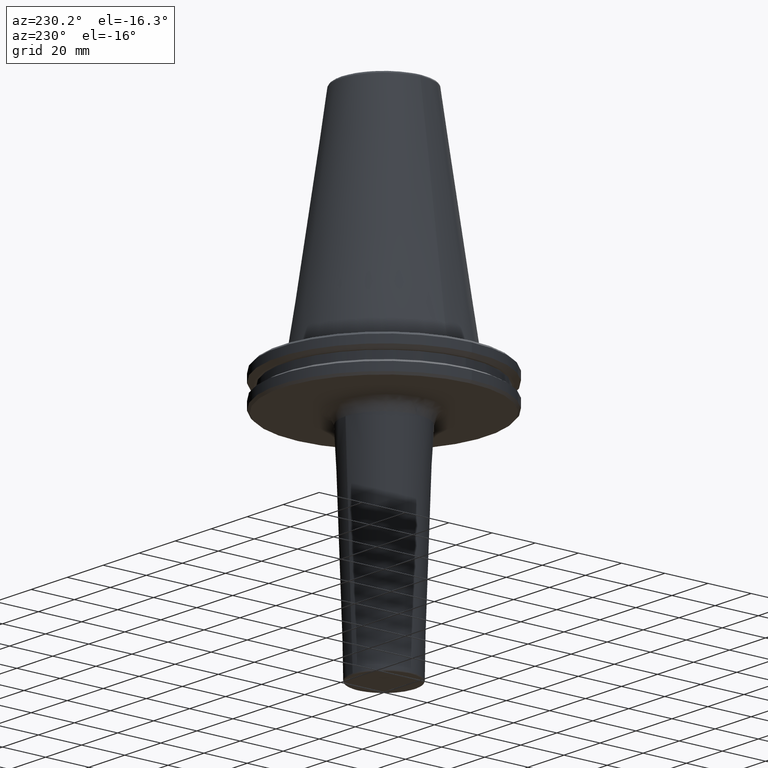
[diagram: clean part render]
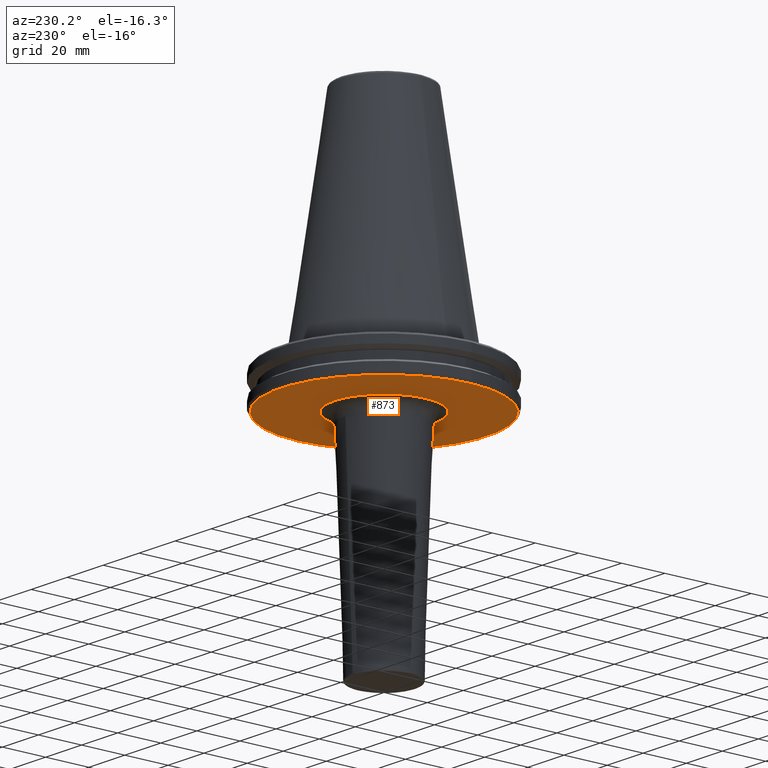
[diagram: same view with one face highlighted and labeled with its STEP entity id]
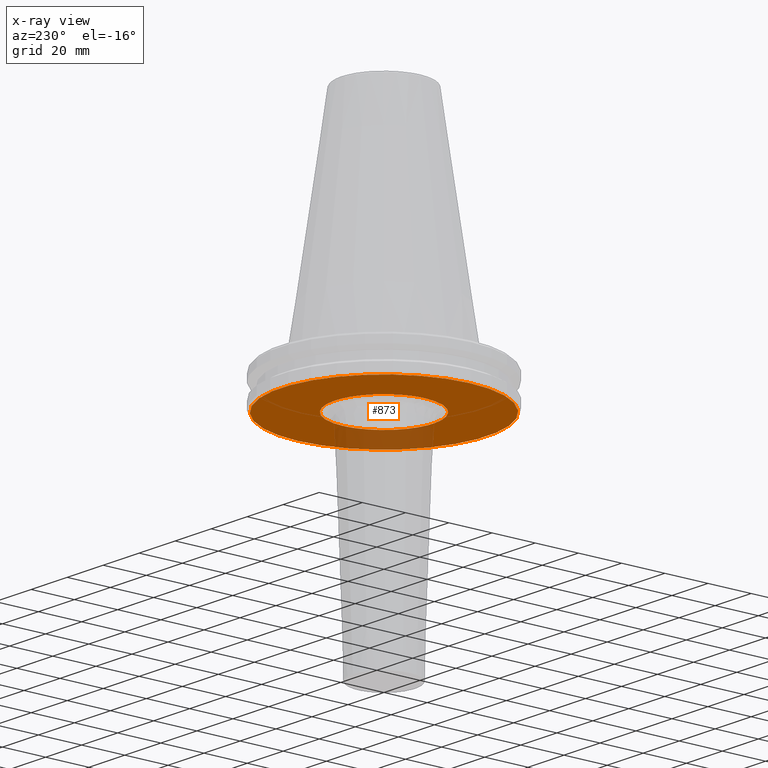
[diagram: x-ray of the same camera — body ghosted, the highlighted face saturated]
A machine part, auxiliary view. The second image highlights one B-rep face of the part: STEP entity #873.
The next image is the same camera in x-ray: the body ghosted, the highlighted face saturated — about 16% of this face is hidden behind the body in this view.
In plain terms, the highlighted planar face has unit normal (0, 0, -1).
Its self-contained STEP definition (entity closure, byte-faithful):
#45 = CARTESIAN_POINT ( 'NONE',  ( 22.31228933546329400, 4.881676873664744700, -19.09999999999999400 ) ) ;
#63 = ORIENTED_EDGE ( 'NONE', *, *, #1444, .F. ) ;
#69 = EDGE_LOOP ( 'NONE', ( #96, #304 ) ) ;
#75 = CARTESIAN_POINT ( 'NONE',  ( 22.78042330298929500, 1.740819265574696400, -19.10000000000000500 ) ) ;
#78 = CARTESIAN_POINT ( 'NONE',  ( 22.64147837888152600, 2.949852188542820800, -19.10000000000000500 ) ) ;
#84 = CARTESIAN_POINT ( 'NONE',  ( 22.82806156268339100, 2.795631252347894000E-015, -19.10000000000000500 ) ) ;
#90 = CARTESIAN_POINT ( 'NONE',  ( 21.29273228508893800, 8.230564738626219100, -19.10000000000000100 ) ) ;
#93 = CARTESIAN_POINT ( 'NONE',  ( 22.82806156268339500, -1.396454163596773500, -19.10000000000000100 ) ) ;
#96 = ORIENTED_EDGE ( 'NONE', *, *, #116, .T. ) ;
#102 = CARTESIAN_POINT ( 'NONE',  ( 22.70102620349914000, -2.781075417796220300, -19.10000000000000500 ) ) ;
#104 = CARTESIAN_POINT ( 'NONE',  ( 22.44298563015613000, -4.175313580485759100, -19.10000000000000900 ) ) ;
#108 = CARTESIAN_POINT ( 'NONE',  ( 22.43849916178885800, -4.199363345581996800, -19.10000000000000100 ) ) ;
#110 = CARTESIAN_POINT ( 'NONE',  ( 22.42994198119624700, -4.244833663054379300, -19.10000000000000100 ) ) ;
#113 = CARTESIAN_POINT ( 'NONE',  ( 22.41700535305649600, -4.313009873751574300, -19.10000000000000500 ) ) ;
#116 = EDGE_CURVE ( 'NONE', #1308, #838, #758, .T. ) ;
#117 = CARTESIAN_POINT ( 'NONE',  ( 22.38611388664119100, -4.471882840132003000, -19.10000000000000500 ) ) ;
#121 = CARTESIAN_POINT ( 'NONE',  ( 22.32150695078713600, -4.788809338574126600, -19.10000000000000500 ) ) ;
#128 = FACE_OUTER_BOUND ( 'NONE', #467, .T. ) ;
#133 = CARTESIAN_POINT ( 'NONE',  ( 22.18099706698523500, -5.419384598183378400, -19.10000000000000900 ) ) ;
#139 = CARTESIAN_POINT ( 'NONE',  ( 21.85479325100612200, -6.667424168301998600, -19.10000000000000100 ) ) ;
#141 = CARTESIAN_POINT ( 'NONE',  ( 22.45116380230774300, 4.131119602877402200, -19.10000000000000500 ) ) ;
#142 = CARTESIAN_POINT ( 'NONE',  ( 21.49773161152357300, -7.714696458518095500, -19.09999999999999800 ) ) ;
#145 = CARTESIAN_POINT ( 'NONE',  ( 21.20823538725298700, -8.445900705292645600, -19.10000000000000100 ) ) ;
#146 = CARTESIAN_POINT ( 'NONE',  ( 21.24300699259264400, 8.358069299538433600, -19.10000000000000900 ) ) ;
#149 = CARTESIAN_POINT ( 'NONE',  ( 21.18962481807872000, -8.492496306890615200, -19.10000000000000500 ) ) ;
#158 = CARTESIAN_POINT ( 'NONE',  ( 21.15358072283777000, -8.581893291728668800, -19.10000000000000500 ) ) ;
#162 = CARTESIAN_POINT ( 'NONE',  ( 21.09911024357263200, -8.715778137709683900, -19.10000000000000500 ) ) ;
#164 = AXIS2_PLACEMENT_3D ( 'NONE', #907, #892, #867 ) ;
#167 = CARTESIAN_POINT ( 'NONE',  ( -22.82806156268339100, 0.0000000000000000000, -19.10000000000000500 ) ) ;
#170 = CARTESIAN_POINT ( 'NONE',  ( 20.96918210379468700, -9.026701692732897800, -19.10000000000000900 ) ) ;
#173 = CARTESIAN_POINT ( 'NONE',  ( 20.69800440493491000, -9.642651127049378000, -19.10000000000000900 ) ) ;
#181 = CARTESIAN_POINT ( 'NONE',  ( 20.11036332999988100, -10.85095929276262300, -19.10000000000000500 ) ) ;
#189 = CARTESIAN_POINT ( 'NONE',  ( 19.52903839054331700, -11.84621080122587400, -19.10000000000000900 ) ) ;
#192 = CARTESIAN_POINT ( 'NONE',  ( 19.05422839119474800, -12.57242883007069700, -19.10000000000000100 ) ) ;
#198 = CARTESIAN_POINT ( 'NONE',  ( 18.99866868114749300, -12.65625465060945100, -19.10000000000000900 ) ) ;
#209 = CARTESIAN_POINT ( 'NONE',  ( 18.88887845415888100, -12.81956869425480700, -19.10000000000000500 ) ) ;
#214 = CARTESIAN_POINT ( 'NONE',  ( 18.72271926332887700, -13.06333709073557400, -19.10000000000000100 ) ) ;
#220 = CARTESIAN_POINT ( 'NONE',  ( 18.32469753229601000, -13.62371133294649500, -19.10000000000000500 ) ) ;
#221 = CARTESIAN_POINT ( 'NONE',  ( 17.48738626051219200, -14.71078508572482400, -19.10000000000000500 ) ) ;
#225 = CARTESIAN_POINT ( 'NONE',  ( 16.69894606803787300, -15.58483447671741100, -19.10000000000000500 ) ) ;
#233 = CARTESIAN_POINT ( 'NONE',  ( 15.02773926087644100, -17.25596244351742200, -19.10000000000000500 ) ) ;
#244 = CARTESIAN_POINT ( 'NONE',  ( 13.81052122464795000, -18.24483669963387600, -19.10000000000000500 ) ) ;
#245 = CARTESIAN_POINT ( 'NONE',  ( 12.40931398255988100, -19.16086933017373200, -19.10000000000000100 ) ) ;
#246 = CARTESIAN_POINT ( 'NONE',  ( 12.32999966421798100, -19.21199831384471700, -19.10000000000000500 ) ) ;
#249 = CARTESIAN_POINT ( 'NONE',  ( 12.16742618611643700, -19.31539044640761900, -19.10000000000000500 ) ) ;
#250 = DIRECTION ( 'NONE',  ( 1.000000000000000000, 0.0000000000000000000, 0.0000000000000000000 ) ) ;
#253 = CARTESIAN_POINT ( 'NONE',  ( 11.92273076462143200, -19.46885752175919400, -19.10000000000000500 ) ) ;
#254 = DIRECTION ( 'NONE',  ( -0.0000000000000000000, -0.0000000000000000000, 1.000000000000000000 ) ) ;
#255 = CARTESIAN_POINT ( 'NONE',  ( 11.34592835073423300, -19.81559949979672600, -19.10000000000000500 ) ) ;
#258 = CARTESIAN_POINT ( 'NONE',  ( 10.16893780136440700, -20.46369199807397600, -19.10000000000000500 ) ) ;
#260 = CARTESIAN_POINT ( 'NONE',  ( 9.119998950598146700, -20.94138592608674500, -19.10000000000001200 ) ) ;
#261 = VERTEX_POINT ( 'NONE', #1155 ) ;
#266 = CARTESIAN_POINT ( 'NONE',  ( 0.0000000000000000000, 0.0000000000000000000, -19.09999999999995200 ) ) ;
#268 = CARTESIAN_POINT ( 'NONE',  ( 8.358069299537639600, -21.24300699259279300, -19.10000000000000500 ) ) ;
#274 = CARTESIAN_POINT ( 'NONE',  ( 8.316784260471870000, -21.25920043003061700, -19.10000000000000100 ) ) ;
#288 = CARTESIAN_POINT ( 'NONE',  ( 8.230564738626020100, -21.29273228508843000, -19.10000000000000100 ) ) ;
#293 = CARTESIAN_POINT ( 'NONE',  ( 8.101120364316019000, -21.34262606961830500, -19.10000000000000100 ) ) ;
#296 = CARTESIAN_POINT ( 'NONE',  ( 7.798277850137431200, -21.45621691379019700, -19.10000000000000500 ) ) ;
#304 = ORIENTED_EDGE ( 'NONE', *, *, #1046, .T. ) ;
#305 = CARTESIAN_POINT ( 'NONE',  ( 21.45621691379186300, 7.798277850138053900, -19.10000000000000900 ) ) ;
#307 = CARTESIAN_POINT ( 'NONE',  ( 7.189370258625911200, -21.67208665654265000, -19.10000000000000900 ) ) ;
#314 = CARTESIAN_POINT ( 'NONE',  ( 5.958664822985504400, -22.05857835968216600, -19.10000000000000500 ) ) ;
#316 = CARTESIAN_POINT ( 'NONE',  ( 4.881676873663934700, -22.31228933546113400, -19.10000000000000500 ) ) ;
#318 = CARTESIAN_POINT ( 'NONE',  ( 22.50079664322240400, 3.853331620544945900, -19.10000000000000900 ) ) ;
#327 = CARTESIAN_POINT ( 'NONE',  ( 4.131119602877420000, -22.45116380230781400, -19.10000000000000900 ) ) ;
#336 = CARTESIAN_POINT ( 'NONE',  ( 22.46267983256873200, 4.068028259309591600, -19.10000000000000500 ) ) ;
#337 = CARTESIAN_POINT ( 'NONE',  ( 4.110944779735608500, -22.45486518609846300, -19.10000000000000500 ) ) ;
#338 = CARTESIAN_POINT ( 'NONE',  ( 47.74999999999995700, 0.0000000000000000000, -19.09999999999995200 ) ) ;
#343 = CARTESIAN_POINT ( 'NONE',  ( 4.068017518967534900, -22.46268181983809600, -19.10000000000000500 ) ) ;
#344 = CARTESIAN_POINT ( 'NONE',  ( 4.003618349909968900, -22.47431370321936200, -19.10000000000000900 ) ) ;
#347 = CARTESIAN_POINT ( 'NONE',  ( 3.853295676770752900, -22.50080329384500600, -19.10000000000000500 ) ) ;
#354 = ORIENTED_EDGE ( 'NONE', *, *, #601, .F. ) ;
#355 = CARTESIAN_POINT ( 'NONE',  ( 3.552418549139466600, -22.55117659270698700, -19.10000000000000500 ) ) ;
#358 = CARTESIAN_POINT ( 'NONE',  ( 2.949737168465425400, -22.64149966087384800, -19.10000000000000500 ) ) ;
#359 = CARTESIAN_POINT ( 'NONE',  ( 1.740665905471500400, -22.78045167897905900, -19.10000000000001200 ) ) ;
#363 = CARTESIAN_POINT ( 'NONE',  ( 0.6979616772267052100, -22.82807777753468400, -19.10000000000000500 ) ) ;
#364 = CARTESIAN_POINT ( 'NONE',  ( -1.395923354453416400, -22.82802913298080900, -19.10000000000000500 ) ) ;
#367 = CARTESIAN_POINT ( 'NONE',  ( -2.781250729790679000, -22.70099375739214400, -19.10000000000000900 ) ) ;
#370 = CARTESIAN_POINT ( 'NONE',  ( -4.175310841235845100, -22.44298613712655000, -19.10000000000000500 ) ) ;
#378 = CARTESIAN_POINT ( 'NONE',  ( -4.199363345583506700, -22.43849916178841400, -19.10000000000000100 ) ) ;
#379 = CARTESIAN_POINT ( 'NONE',  ( -4.244833663057371500, -22.42994198119537300, -19.10000000000000500 ) ) ;
#381 = CARTESIAN_POINT ( 'NONE',  ( -4.313009873756742600, -22.41700535305497200, -19.10000000000000500 ) ) ;
#384 = CARTESIAN_POINT ( 'NONE',  ( -4.471882840142008300, -22.38611388663825600, -19.10000000000000500 ) ) ;
#386 = CARTESIAN_POINT ( 'NONE',  ( -4.788809338592795200, -22.32150695078165000, -19.10000000000000500 ) ) ;
#389 = CARTESIAN_POINT ( 'NONE',  ( -5.419384598215393600, -22.18099706697582400, -19.10000000000000900 ) ) ;
#394 = CARTESIAN_POINT ( 'NONE',  ( -6.667424168344671100, -21.85479325099358800, -19.10000000000000500 ) ) ;
#398 = CARTESIAN_POINT ( 'NONE',  ( -7.714696458542475100, -21.49773161151641800, -19.10000000000000100 ) ) ;
#402 = CARTESIAN_POINT ( 'NONE',  ( -8.445900705291125000, -21.20823538725344200, -19.10000000000000500 ) ) ;
#404 = CARTESIAN_POINT ( 'NONE',  ( -8.492496306893579900, -21.18962481807723100, -19.10000000000000100 ) ) ;
#418 = CARTESIAN_POINT ( 'NONE',  ( -8.581893291734463200, -21.15358072283486700, -19.10000000000000900 ) ) ;
#421 = CARTESIAN_POINT ( 'NONE',  ( -8.715778137719571100, -21.09911024356766500, -19.10000000000000500 ) ) ;
#425 = CARTESIAN_POINT ( 'NONE',  ( -9.026701692751343500, -20.96918210378540000, -19.10000000000000500 ) ) ;
#427 = CARTESIAN_POINT ( 'NONE',  ( -9.642651127081007800, -20.69800440491899400, -19.10000000000000500 ) ) ;
#434 = CARTESIAN_POINT ( 'NONE',  ( -10.85095929280480900, -20.11036332997865700, -19.10000000000000900 ) ) ;
#438 = CARTESIAN_POINT ( 'NONE',  ( 21.25920043003087700, 8.316784260471976600, -19.10000000000001200 ) ) ;
#441 = CARTESIAN_POINT ( 'NONE',  ( -11.84621080124998500, -19.52903839053117700, -19.10000000000000500 ) ) ;
#443 = CARTESIAN_POINT ( 'NONE',  ( -12.57242883006769000, -19.05422839119626500, -19.10000000000000500 ) ) ;
#448 = CARTESIAN_POINT ( 'NONE',  ( -12.65625465061204500, -18.99866868114489900, -19.10000000000000500 ) ) ;
#451 = CARTESIAN_POINT ( 'NONE',  ( -12.81956869425974200, -18.88887845415395400, -19.10000000000000500 ) ) ;
#463 = CARTESIAN_POINT ( 'NONE',  ( -13.06333709074376900, -18.72271926332069100, -19.10000000000000100 ) ) ;
#467 = EDGE_LOOP ( 'NONE', ( #354, #63 ) ) ;
#468 = AXIS2_PLACEMENT_3D ( 'NONE', #266, #254, #250 ) ;
#470 = CARTESIAN_POINT ( 'NONE',  ( -13.62371133296052900, -18.32469753228199100, -19.10000000000000100 ) ) ;
#480 = CARTESIAN_POINT ( 'NONE',  ( -14.71078508574354200, -17.48738626049348400, -19.10000000000000100 ) ) ;
#484 = CARTESIAN_POINT ( 'NONE',  ( -15.58483447672810000, -16.69894606802719000, -19.10000000000000100 ) ) ;
#489 = CARTESIAN_POINT ( 'NONE',  ( -17.25596244349603500, -15.02773926089783700, -19.10000000000000100 ) ) ;
#492 = CARTESIAN_POINT ( 'NONE',  ( -18.24483669967177600, -13.81052122461004700, -19.10000000000000500 ) ) ;
#495 = CARTESIAN_POINT ( 'NONE',  ( -19.16086933017136200, -12.40931398256226000, -19.10000000000000900 ) ) ;
#496 = CARTESIAN_POINT ( 'NONE',  ( -22.82806156268339100, 0.0000000000000000000, -19.10000000000000500 ) ) ;
#499 = CARTESIAN_POINT ( 'NONE',  ( -22.82806156268339500, 1.396454163596815700, -19.10000000000001200 ) ) ;
#501 = CARTESIAN_POINT ( 'NONE',  ( -22.64147837888152600, -2.949852188553505600, -19.10000000000000500 ) ) ;
#503 = CARTESIAN_POINT ( 'NONE',  ( -21.24300699259267900, -8.358069299538435400, -19.10000000000000500 ) ) ;
#504 = CARTESIAN_POINT ( 'NONE',  ( -22.70102620349914000, 2.781075417796206900, -19.10000000000000500 ) ) ;
#506 = CARTESIAN_POINT ( 'NONE',  ( -21.67208665654091600, -7.189370258640315600, -19.10000000000000500 ) ) ;
#508 = CARTESIAN_POINT ( 'NONE',  ( 0.0000000000000000000, 1.392610934382537900E-015, -19.10000000000000500 ) ) ;
#514 = CARTESIAN_POINT ( 'NONE',  ( -19.31539044640846800, -12.16742618611061400, -19.10000000000000900 ) ) ;
#524 = CARTESIAN_POINT ( 'NONE',  ( -21.25920043003044700, -8.316784260473225400, -19.10000000000000900 ) ) ;
#526 = CARTESIAN_POINT ( 'NONE',  ( -22.44298563015613000, 4.175313580485763500, -19.10000000000000500 ) ) ;
#530 = CARTESIAN_POINT ( 'NONE',  ( -21.29273228508811400, -8.230564738628661600, -19.10000000000000500 ) ) ;
#531 = CARTESIAN_POINT ( 'NONE',  ( -22.43849916178926300, 4.199363345579803000, -19.10000000000000500 ) ) ;
#534 = CARTESIAN_POINT ( 'NONE',  ( -19.21199831384516400, -12.32999966421492200, -19.10000000000000900 ) ) ;
#537 = CARTESIAN_POINT ( 'NONE',  ( 21.67208665654548100, 7.189370258626969000, -19.10000000000000100 ) ) ;
#539 = CARTESIAN_POINT ( 'NONE',  ( -22.45116380230785300, -4.131119602877078900, -19.10000000000001200 ) ) ;
#541 = CARTESIAN_POINT ( 'NONE',  ( -21.34262606961776100, -8.101120364320523800, -19.10000000000000500 ) ) ;
#543 = CARTESIAN_POINT ( 'NONE',  ( 22.47431026706435400, 4.003636920859968900, -19.10000000000000500 ) ) ;
#547 = CARTESIAN_POINT ( 'NONE',  ( -22.42994198119704700, 4.244833663050044100, -19.10000000000000500 ) ) ;
#558 = CARTESIAN_POINT ( 'NONE',  ( -22.41700535305787800, 4.313009873744076300, -19.10000000000000500 ) ) ;
#565 = CARTESIAN_POINT ( 'NONE',  ( -22.38611388664388000, 4.471882840117487500, -19.10000000000000900 ) ) ;
#569 = CARTESIAN_POINT ( 'NONE',  ( 22.05857835968595300, 5.958664822986913000, -19.10000000000000500 ) ) ;
#572 = CARTESIAN_POINT ( 'NONE',  ( 22.45486418058767700, 4.110950214091951200, -19.10000000000001200 ) ) ;
#585 = CARTESIAN_POINT ( 'NONE',  ( -22.32150695079216300, 4.788809338547028300, -19.10000000000000900 ) ) ;
#594 = CARTESIAN_POINT ( 'NONE',  ( 22.55116417821146200, 3.552485644184615800, -19.10000000000000100 ) ) ;
#601 = EDGE_CURVE ( 'NONE', #1217, #261, #832, .T. ) ;
#602 = CARTESIAN_POINT ( 'NONE',  ( -22.82806156268339100, 0.0000000000000000000, -19.10000000000000500 ) ) ;
#606 = CARTESIAN_POINT ( 'NONE',  ( -22.55116417821145400, -3.552485644190843200, -19.10000000000000100 ) ) ;
#616 = CARTESIAN_POINT ( 'NONE',  ( -22.50079664322239400, -3.853331620548279700, -19.10000000000000900 ) ) ;
#618 = CARTESIAN_POINT ( 'NONE',  ( -22.18099706699383200, 5.419384598136932900, -19.10000000000000500 ) ) ;
#624 = CARTESIAN_POINT ( 'NONE',  ( -21.85479325101759700, 6.667424168240046400, -19.10000000000000900 ) ) ;
#633 = CARTESIAN_POINT ( 'NONE',  ( -21.49773161153012400, 7.714696458482692700, -19.10000000000000100 ) ) ;
#634 = CARTESIAN_POINT ( 'NONE',  ( -21.20823538725256400, 8.445900705294869600, -19.10000000000000500 ) ) ;
#638 = CARTESIAN_POINT ( 'NONE',  ( -22.82806156268338800, -0.6980493115795235500, -19.10000000000000100 ) ) ;
#641 = CARTESIAN_POINT ( 'NONE',  ( -21.18962481808144800, 8.492496306886142300, -19.10000000000000500 ) ) ;
#642 = CARTESIAN_POINT ( 'NONE',  ( -21.15358072284309500, 8.581893291719913100, -19.10000000000000500 ) ) ;
#651 = CARTESIAN_POINT ( 'NONE',  ( -21.09911024358175200, 8.715778137694714500, -19.10000000000000500 ) ) ;
#660 = CARTESIAN_POINT ( 'NONE',  ( -20.96918210381168600, 9.026701692704952200, -19.10000000000000500 ) ) ;
#664 = CARTESIAN_POINT ( 'NONE',  ( -20.69800440496408100, 9.642651127001460800, -19.10000000000000500 ) ) ;
#670 = CARTESIAN_POINT ( 'NONE',  ( -20.11036333003878300, 10.85095929269873900, -19.10000000000000500 ) ) ;
#677 = CARTESIAN_POINT ( 'NONE',  ( -22.46267983256872500, -4.068028259310581900, -19.10000000000000100 ) ) ;
#680 = CARTESIAN_POINT ( 'NONE',  ( -22.47431026706435000, -4.003636920861689300, -19.10000000000000500 ) ) ;
#687 = CARTESIAN_POINT ( 'NONE',  ( -19.52903839056553500, 11.84621080118937700, -19.10000000000000900 ) ) ;
#701 = CARTESIAN_POINT ( 'NONE',  ( -19.05422839119196300, 12.57242883007526000, -19.10000000000000500 ) ) ;
#714 = CARTESIAN_POINT ( 'NONE',  ( -18.99866868114982000, 12.65625465060650300, -19.10000000000000500 ) ) ;
#742 = DIRECTION ( 'NONE',  ( -1.000000000000000000, 0.0000000000000000000, -0.0000000000000000000 ) ) ;
#748 = CARTESIAN_POINT ( 'NONE',  ( -18.88887845416331900, 12.81956869424920100, -19.10000000000000900 ) ) ;
#758 = B_SPLINE_CURVE_WITH_KNOTS ( 'NONE', 3,
 ( #602, #638, #976, #501, #606, #616, #680, #677, #880, #539, #1177, #1070, #506, #1090, #541, #530, #524, #503, #1237, #1014, #906, #922, #514, #534, #495, #492, #489, #484, #480, #470, #463, #451, #448, #443, #441, #434, #427, #425, #421, #418, #404, #402, #398, #394, #389, #386, #384, #381, #379, #378, #370, #367, #364, #363, #359, #358, #355, #347, #344, #343, #337, #327, #316, #314, #307, #296, #293, #288, #274, #268, #260, #258, #255, #253, #249, #246, #245, #244, #233, #225, #221, #220, #214, #209, #198, #192, #189, #181, #173, #170, #162, #158, #149, #145, #142, #139, #133, #121, #117, #113, #110, #108, #104, #102, #93, #84 ),
 .UNSPECIFIED., .F., .F.,
 ( 4, 1, 1, 1, 1, 1, 2, 2, 1, 1, 1, 1, 2, 2, 1, 1, 1, 2, 2, 2, 1, 1, 1, 2, 2, 1, 1, 1, 1, 2, 2, 1, 1, 1, 1, 1, 2, 2, 2, 1, 1, 1, 1, 1, 2, 2, 1, 1, 1, 1, 2, 2, 1, 1, 1, 2, 2, 2, 1, 1, 1, 2, 2, 1, 1, 1, 1, 2, 2, 1, 1, 1, 1, 1, 2, 2, 4 ),
 ( 0.0000000000000000000, 0.03125000000000097800, 0.04687500000000145000, 0.05468750000000169300, 0.05859375000000179000, 0.06054687500000182500, 0.06152343750000186000, 0.06250000000000188700, 0.09375000000000215100, 0.1093750000000023300, 0.1171875000000023900, 0.1210937500000023500, 0.1230468750000023000, 0.1250000000000022500, 0.1562500000000014400, 0.1718750000000010500, 0.1796875000000008300, 0.1835937500000006900, 0.1875000000000005600, 0.2499999999999993300, 0.2812499999999987200, 0.2968749999999983900, 0.3046874999999982800, 0.3085937499999981100, 0.3124999999999979500, 0.3437499999999970600, 0.3593749999999966100, 0.3671874999999963900, 0.3710937499999962800, 0.3730468749999962300, 0.3749999999999961700, 0.4062499999999964500, 0.4218749999999966100, 0.4296874999999966700, 0.4335937499999967800, 0.4355468749999967800, 0.4365234374999967200, 0.4374999999999967200, 0.4999999999999951700, 0.5312499999999944500, 0.5468749999999940000, 0.5546874999999937800, 0.5585937499999937800, 0.5605468749999936700, 0.5615234374999936700, 0.5624999999999937800, 0.5937499999999935600, 0.6093749999999935600, 0.6171874999999935600, 0.6210937499999935600, 0.6230468749999936700, 0.6249999999999936700, 0.6562499999999935600, 0.6718749999999934500, 0.6796874999999935600, 0.6835937499999935600, 0.6874999999999935600, 0.7499999999999936700, 0.7812499999999936700, 0.7968749999999937800, 0.8046874999999937800, 0.8085937499999937800, 0.8124999999999937800, 0.8437499999999940000, 0.8593749999999941200, 0.8671874999999943400, 0.8710937499999943400, 0.8730468749999943400, 0.8749999999999944500, 0.9062499999999945600, 0.9218749999999945600, 0.9296874999999945600, 0.9335937499999945600, 0.9355468749999946700, 0.9365234374999946700, 0.9374999999999946700, 1.000000000000000000 ),
 .UNSPECIFIED. ) ;
#770 = CARTESIAN_POINT ( 'NONE',  ( -18.72271926333625600, 13.06333709072626100, -19.10000000000000500 ) ) ;
#771 = CARTESIAN_POINT ( 'NONE',  ( -18.32469753230866900, 13.62371133293052100, -19.10000000000000900 ) ) ;
#772 = CARTESIAN_POINT ( 'NONE',  ( -17.48738626052905700, 14.71078508570352600, -19.10000000000000500 ) ) ;
#783 = CARTESIAN_POINT ( 'NONE',  ( -16.69894606804752300, 15.58483447670522500, -19.10000000000000500 ) ) ;
#790 = CARTESIAN_POINT ( 'NONE',  ( -15.02773926085716000, 17.25596244354176500, -19.09999999999999800 ) ) ;
#813 = CARTESIAN_POINT ( 'NONE',  ( -13.81052122464294000, 18.24483669964396500, -19.10000000000000900 ) ) ;
#822 = CARTESIAN_POINT ( 'NONE',  ( -12.40931398256019800, 19.16086933017310700, -19.10000000000000500 ) ) ;
#828 = CARTESIAN_POINT ( 'NONE',  ( -12.32999966421824700, 19.21199831384374000, -19.10000000000001200 ) ) ;
#832 = CIRCLE ( 'NONE', #468, 47.74999999999995700 ) ;
#838 = VERTEX_POINT ( 'NONE', #1529 ) ;
#859 = CARTESIAN_POINT ( 'NONE',  ( -12.16742618611695200, 19.31539044640574700, -19.10000000000000500 ) ) ;
#863 = CARTESIAN_POINT ( 'NONE',  ( -11.92273076462228000, 19.46885752175606800, -19.10000000000000100 ) ) ;
#867 = DIRECTION ( 'NONE',  ( 1.000000000000000000, 0.0000000000000000000, 0.0000000000000000000 ) ) ;
#873 = ADVANCED_FACE ( 'NONE', ( #1249, #128 ), #882, .T. ) ;
#875 = CARTESIAN_POINT ( 'NONE',  ( -11.34592835073568100, 19.81559949979138900, -19.10000000000000500 ) ) ;
#878 = CARTESIAN_POINT ( 'NONE',  ( -10.16893780136636000, 20.46369199806684900, -19.10000000000000500 ) ) ;
#880 = CARTESIAN_POINT ( 'NONE',  ( -22.45486418058767000, -4.110950214092449400, -19.10000000000000900 ) ) ;
#882 = PLANE ( 'NONE',  #1012 ) ;
#892 = DIRECTION ( 'NONE',  ( -0.0000000000000000000, -0.0000000000000000000, 1.000000000000000000 ) ) ;
#894 = CARTESIAN_POINT ( 'NONE',  ( 22.82806156268339100, 0.6980493115713823900, -19.10000000000000500 ) ) ;
#896 = CARTESIAN_POINT ( 'NONE',  ( -9.119998950599246300, 20.94138592608267800, -19.10000000000000900 ) ) ;
#906 = CARTESIAN_POINT ( 'NONE',  ( -19.81559949979915600, -11.34592835071762300, -19.10000000000000500 ) ) ;
#907 = CARTESIAN_POINT ( 'NONE',  ( 0.0000000000000000000, 0.0000000000000000000, -19.09999999999995200 ) ) ;
#913 = CARTESIAN_POINT ( 'NONE',  ( -8.358069299537580900, 21.24300699259304200, -19.10000000000000500 ) ) ;
#922 = CARTESIAN_POINT ( 'NONE',  ( -19.46885752176060100, -11.92273076461174800, -19.10000000000000900 ) ) ;
#948 = CARTESIAN_POINT ( 'NONE',  ( 21.34262606961919300, 8.101120364316349400, -19.10000000000000100 ) ) ;
#976 = CARTESIAN_POINT ( 'NONE',  ( -22.78042330298928800, -1.740819265588943000, -19.10000000000000100 ) ) ;
#1012 = AXIS2_PLACEMENT_3D ( 'NONE', #508, #1099, #742 ) ;
#1013 = CARTESIAN_POINT ( 'NONE',  ( -8.316784260472486400, 21.25920043003078400, -19.10000000000000100 ) ) ;
#1014 = CARTESIAN_POINT ( 'NONE',  ( -20.46369199807720200, -10.16893780134226900, -19.10000000000000500 ) ) ;
#1019 = CARTESIAN_POINT ( 'NONE',  ( -8.230564738627217400, 21.29273228508877800, -19.10000000000000100 ) ) ;
#1031 = B_SPLINE_CURVE_WITH_KNOTS ( 'NONE', 3,
 ( #1054, #894, #75, #78, #594, #318, #543, #336, #572, #141, #45, #569, #537, #305, #948, #90, #438, #146, #1550, #1547, #1544, #1540, #1536, #1533, #1486, #1473, #1463, #1454, #1447, #1437, #1396, #1391, #1376, #1364, #1362, #1361, #1353, #1352, #1350, #1344, #1293, #1271, #1265, #1261, #1260, #1256, #1252, #1246, #1244, #1241, #1238, #1232, #1230, #1223, #1205, #1174, #1167, #1154, #1151, #1142, #1138, #1126, #1125, #1121, #1071, #1041, #1038, #1019, #1013, #913, #896, #878, #875, #863, #859, #828, #822, #813, #790, #783, #772, #771, #770, #748, #714, #701, #687, #670, #664, #660, #651, #642, #641, #634, #633, #624, #618, #585, #565, #558, #547, #531, #526, #504, #499, #496 ),
 .UNSPECIFIED., .F., .F.,
 ( 4, 1, 1, 1, 1, 1, 2, 2, 1, 1, 1, 1, 2, 2, 1, 1, 1, 2, 2, 2, 1, 1, 1, 2, 2, 1, 1, 1, 1, 2, 2, 1, 1, 1, 1, 1, 2, 2, 2, 1, 1, 1, 1, 1, 2, 2, 1, 1, 1, 1, 2, 2, 1, 1, 1, 2, 2, 2, 1, 1, 1, 2, 2, 1, 1, 1, 1, 2, 2, 1, 1, 1, 1, 1, 2, 2, 4 ),
 ( 0.0000000000000000000, 0.03125000000000389300, 0.04687500000000584300, 0.05468750000000681400, 0.05859375000000731400, 0.06054687500000758400, 0.06152343750000770200, 0.06250000000000782700, 0.09375000000001014500, 0.1093750000000113400, 0.1171875000000119500, 0.1210937500000123400, 0.1230468750000124600, 0.1250000000000126000, 0.1562500000000132400, 0.1718750000000135200, 0.1796875000000137100, 0.1835937500000137700, 0.1875000000000137900, 0.2500000000000144300, 0.2812500000000147700, 0.2968750000000148800, 0.3046875000000149300, 0.3085937500000149300, 0.3125000000000149900, 0.3437500000000153200, 0.3593750000000155400, 0.3671875000000156500, 0.3710937500000157100, 0.3730468750000157100, 0.3750000000000157100, 0.4062500000000168200, 0.4218750000000173200, 0.4296875000000175400, 0.4335937500000176500, 0.4355468750000176500, 0.4365234375000177100, 0.4375000000000177100, 0.5000000000000181000, 0.5312500000000183200, 0.5468750000000185400, 0.5546875000000185400, 0.5585937500000186500, 0.5605468750000186500, 0.5615234375000186500, 0.5625000000000186500, 0.5937500000000182100, 0.6093750000000179900, 0.6171875000000177600, 0.6210937500000177600, 0.6230468750000177600, 0.6250000000000177600, 0.6562500000000165400, 0.6718750000000159900, 0.6796875000000156500, 0.6835937500000154300, 0.6875000000000152100, 0.7500000000000127700, 0.7812500000000116600, 0.7968750000000109900, 0.8046875000000106600, 0.8085937500000104400, 0.8125000000000103300, 0.8437500000000089900, 0.8593750000000083300, 0.8671875000000079900, 0.8710937500000077700, 0.8730468750000077700, 0.8750000000000076600, 0.9062500000000060000, 0.9218750000000051100, 0.9296875000000046600, 0.9335937500000044400, 0.9355468750000044400, 0.9365234375000043300, 0.9375000000000042200, 1.000000000000000000 ),
 .UNSPECIFIED. ) ;
#1038 = CARTESIAN_POINT ( 'NONE',  ( -8.101120364318052900, 21.34262606961892000, -19.10000000000000100 ) ) ;
#1041 = CARTESIAN_POINT ( 'NONE',  ( -7.798277850141221100, 21.45621691379136600, -19.10000000000000900 ) ) ;
#1046 = EDGE_CURVE ( 'NONE', #838, #1308, #1031, .T. ) ;
#1054 = CARTESIAN_POINT ( 'NONE',  ( 22.82806156268339100, 2.795631252347894000E-015, -19.10000000000000500 ) ) ;
#1070 = CARTESIAN_POINT ( 'NONE',  ( -22.05857835967985600, -5.958664823004709500, -19.10000000000000100 ) ) ;
#1071 = CARTESIAN_POINT ( 'NONE',  ( -7.189370258632402000, 21.67208665654463200, -19.10000000000000500 ) ) ;
#1090 = CARTESIAN_POINT ( 'NONE',  ( -21.45621691378919800, -7.798277850145837000, -19.10000000000000500 ) ) ;
#1099 = DIRECTION ( 'NONE',  ( 0.0000000000000000000, 0.0000000000000000000, -1.000000000000000000 ) ) ;
#1121 = CARTESIAN_POINT ( 'NONE',  ( -5.958664822994147200, 22.05857835968481600, -19.10000000000000500 ) ) ;
#1125 = CARTESIAN_POINT ( 'NONE',  ( -4.881676873668875600, 22.31228933546264800, -19.10000000000000900 ) ) ;
#1126 = CARTESIAN_POINT ( 'NONE',  ( -4.131119602877268100, 22.45116380230776800, -19.10000000000000500 ) ) ;
#1138 = CARTESIAN_POINT ( 'NONE',  ( -4.110944779734844600, 22.45486518609845900, -19.10000000000000500 ) ) ;
#1142 = CARTESIAN_POINT ( 'NONE',  ( -4.068017518966021500, 22.46268181983810700, -19.10000000000000100 ) ) ;
#1151 = CARTESIAN_POINT ( 'NONE',  ( -4.003618349907349700, 22.47431370321936600, -19.10000000000000500 ) ) ;
#1154 = CARTESIAN_POINT ( 'NONE',  ( -3.853295676765681400, 22.50080329384501000, -19.10000000000000500 ) ) ;
#1155 = CARTESIAN_POINT ( 'NONE',  ( -47.74999999999995700, 5.908920805886001700E-015, -19.09999999999995200 ) ) ;
#1167 = CARTESIAN_POINT ( 'NONE',  ( -3.552418549129999100, 22.55117659270698400, -19.10000000000000500 ) ) ;
#1174 = CARTESIAN_POINT ( 'NONE',  ( -2.949737168449189500, 22.64149966087385500, -19.10000000000000900 ) ) ;
#1177 = CARTESIAN_POINT ( 'NONE',  ( -22.31228933545982000, -4.881676873674910800, -19.10000000000000900 ) ) ;
#1205 = CARTESIAN_POINT ( 'NONE',  ( -1.740665905449867000, 22.78045167897906300, -19.10000000000000500 ) ) ;
#1217 = VERTEX_POINT ( 'NONE', #338 ) ;
#1223 = CARTESIAN_POINT ( 'NONE',  ( -0.6979616772143353300, 22.82807777753469100, -19.10000000000000900 ) ) ;
#1230 = CARTESIAN_POINT ( 'NONE',  ( 1.395923354428683500, 22.82802913298080900, -19.10000000000000500 ) ) ;
#1232 = CARTESIAN_POINT ( 'NONE',  ( 2.781250729762510000, 22.70099375739214400, -19.10000000000000500 ) ) ;
#1237 = CARTESIAN_POINT ( 'NONE',  ( -20.94138592608859300, -9.119998950585481300, -19.10000000000000100 ) ) ;
#1238 = CARTESIAN_POINT ( 'NONE',  ( 4.175310841236290900, 22.44298613712655000, -19.10000000000000500 ) ) ;
#1241 = CARTESIAN_POINT ( 'NONE',  ( 4.199363345581236500, 22.43849916178901100, -19.10000000000000100 ) ) ;
#1244 = CARTESIAN_POINT ( 'NONE',  ( 4.244833663052873800, 22.42994198119653900, -19.09999999999999800 ) ) ;
#1246 = CARTESIAN_POINT ( 'NONE',  ( 4.313009873748963900, 22.41700535305700000, -19.10000000000000500 ) ) ;
#1249 = FACE_BOUND ( 'NONE', #69, .T. ) ;
#1252 = CARTESIAN_POINT ( 'NONE',  ( 4.471882840126952800, 22.38611388664216800, -19.10000000000000100 ) ) ;
#1256 = CARTESIAN_POINT ( 'NONE',  ( 4.788809338564686200, 22.32150695078898300, -19.10000000000000900 ) ) ;
#1260 = CARTESIAN_POINT ( 'NONE',  ( 5.419384598167205500, 22.18099706698836800, -19.10000000000000500 ) ) ;
#1261 = CARTESIAN_POINT ( 'NONE',  ( 6.667424168280413200, 21.85479325101031700, -19.10000000000000100 ) ) ;
#1265 = CARTESIAN_POINT ( 'NONE',  ( 7.714696458505757800, 21.49773161152597100, -19.10000000000000900 ) ) ;
#1271 = CARTESIAN_POINT ( 'NONE',  ( 8.445900705293430700, 21.20823538725283100, -19.10000000000000500 ) ) ;
#1293 = CARTESIAN_POINT ( 'NONE',  ( 8.492496306889004000, 21.18962481807967900, -19.10000000000000500 ) ) ;
#1308 = VERTEX_POINT ( 'NONE', #167 ) ;
#1344 = CARTESIAN_POINT ( 'NONE',  ( 8.581893291725505100, 21.15358072283964600, -19.10000000000000100 ) ) ;
#1350 = CARTESIAN_POINT ( 'NONE',  ( 8.715778137704266000, 21.09911024357584000, -19.10000000000000500 ) ) ;
#1352 = CARTESIAN_POINT ( 'NONE',  ( 9.026701692722770800, 20.96918210380067600, -19.10000000000000900 ) ) ;
#1353 = CARTESIAN_POINT ( 'NONE',  ( 9.642651127032021200, 20.69800440494519100, -19.10000000000000500 ) ) ;
#1361 = CARTESIAN_POINT ( 'NONE',  ( 10.85095929273947100, 20.11036333001359500, -19.10000000000000500 ) ) ;
#1362 = CARTESIAN_POINT ( 'NONE',  ( 11.84621080121264900, 19.52903839055114000, -19.10000000000000500 ) ) ;
#1364 = CARTESIAN_POINT ( 'NONE',  ( 12.57242883007235100, 19.05422839119376400, -19.10000000000000500 ) ) ;
#1376 = CARTESIAN_POINT ( 'NONE',  ( 12.65625465060886700, 18.99866868114808600, -19.10000000000000500 ) ) ;
#1391 = CARTESIAN_POINT ( 'NONE',  ( 12.81956869425369800, 18.88887845415999700, -19.09999999999999800 ) ) ;
#1396 = CARTESIAN_POINT ( 'NONE',  ( 13.06333709073372700, 18.72271926333073800, -19.10000000000000900 ) ) ;
#1412 = CIRCLE ( 'NONE', #164, 47.74999999999995700 ) ;
#1437 = CARTESIAN_POINT ( 'NONE',  ( 13.62371133294332300, 18.32469753229919000, -19.10000000000000500 ) ) ;
#1444 = EDGE_CURVE ( 'NONE', #261, #1217, #1412, .T. ) ;
#1447 = CARTESIAN_POINT ( 'NONE',  ( 14.71078508572058900, 17.48738626051643800, -19.10000000000000500 ) ) ;
#1454 = CARTESIAN_POINT ( 'NONE',  ( 15.58483447671498600, 16.69894606804030700, -19.10000000000000500 ) ) ;
#1463 = CARTESIAN_POINT ( 'NONE',  ( 17.25596244352225400, 15.02773926087161100, -19.10000000000000500 ) ) ;
#1473 = CARTESIAN_POINT ( 'NONE',  ( 18.24483669966836500, 13.81052122461345800, -19.10000000000000500 ) ) ;
#1486 = CARTESIAN_POINT ( 'NONE',  ( 19.16086933017158600, 12.40931398256204300, -19.10000000000000500 ) ) ;
#1529 = CARTESIAN_POINT ( 'NONE',  ( 22.82806156268339100, 2.795631252347894000E-015, -19.10000000000000500 ) ) ;
#1533 = CARTESIAN_POINT ( 'NONE',  ( 19.21199831384529900, 12.32999966421493100, -19.10000000000001200 ) ) ;
#1536 = CARTESIAN_POINT ( 'NONE',  ( 19.31539044640872400, 12.16742618611062300, -19.09999999999999800 ) ) ;
#1540 = CARTESIAN_POINT ( 'NONE',  ( 19.46885752176102400, 11.92273076461177400, -19.10000000000000500 ) ) ;
#1544 = CARTESIAN_POINT ( 'NONE',  ( 19.81559949979986600, 11.34592835071768700, -19.10000000000000500 ) ) ;
#1547 = CARTESIAN_POINT ( 'NONE',  ( 20.46369199807817200, 10.16893780134234500, -19.10000000000000900 ) ) ;
#1550 = CARTESIAN_POINT ( 'NONE',  ( 20.94138592608914400, 9.119998950585527500, -19.10000000000000100 ) ) ;